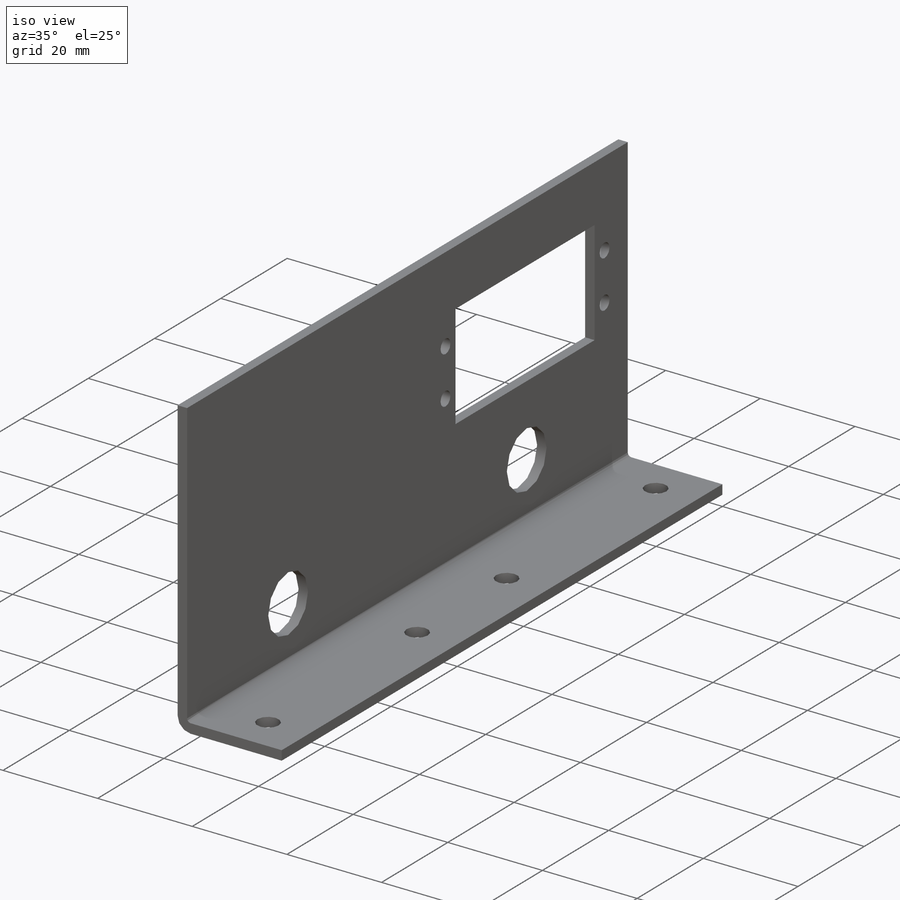
[diagram: iso view]
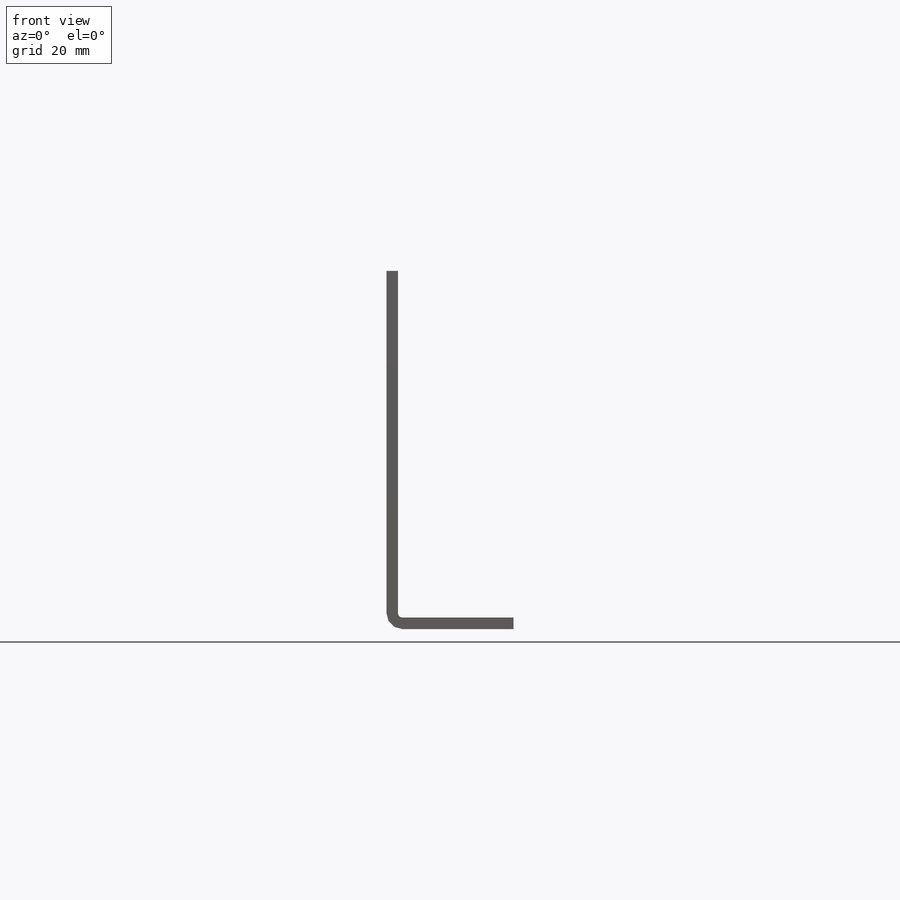
[diagram: front view]
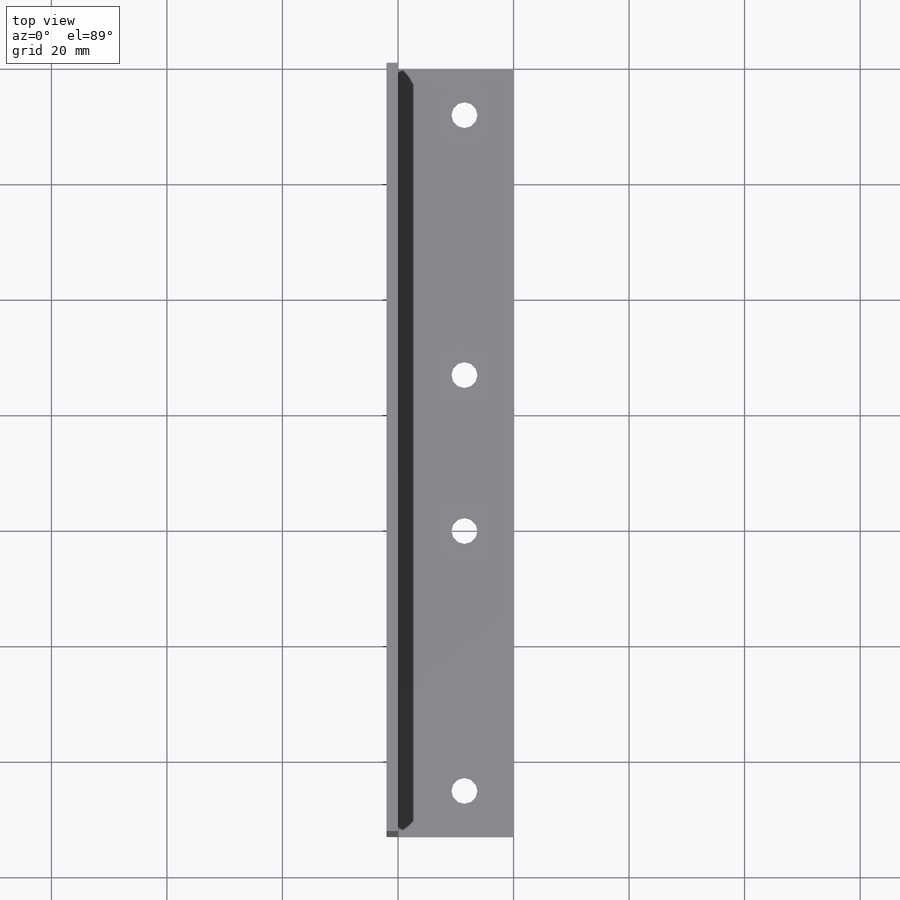
[diagram: top view]
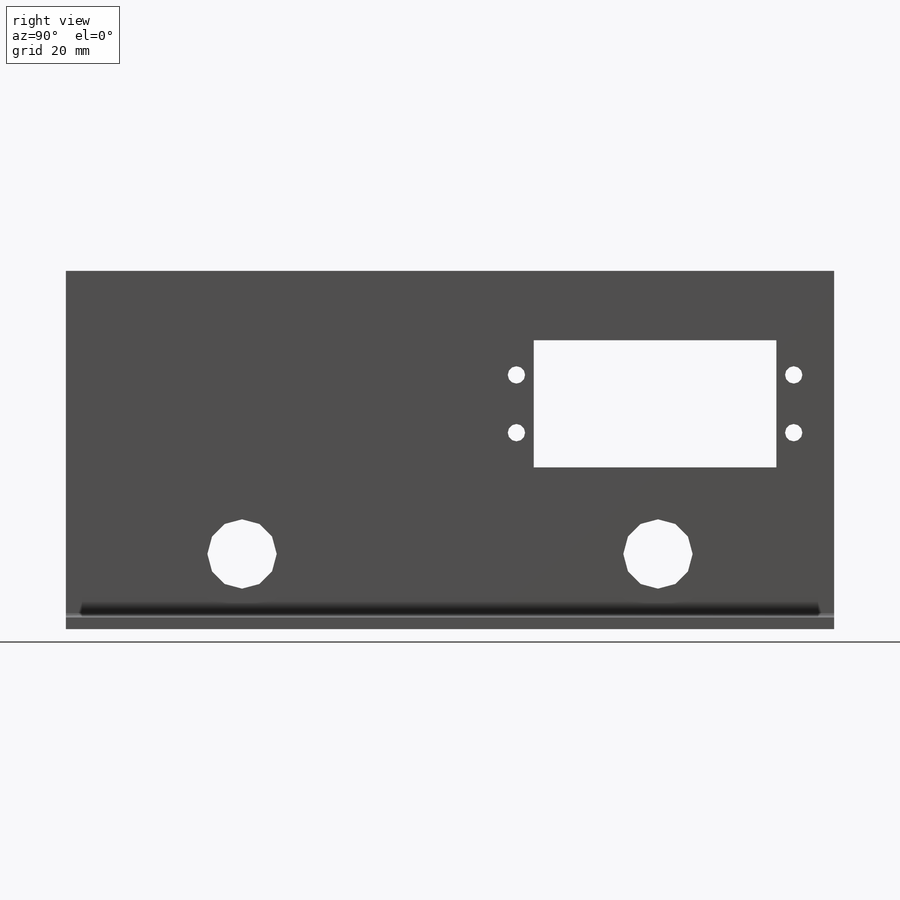
[diagram: right view]
SOLIDWORKS PART (.sldprt)
format: sldprt  version: not decoded by parser v0  size: 323,072 bytes
history: native  units: mm
features: sheet_metal_op x19, plane x4, hole x4, cut_extrude x2, material x1, sketch x1 + 8 further entries (+10 scaffold rows collapsed)
feature tree (49):
  scaffold x10  (default folders/planes/origin — collapsed)
  material  "材質 <未指定>"
  plane  "前基準面"
  plane  "上基準面"
  plane  "右基準面"
  sketch  "草圖1"  dims[c1.D1=60.0mm c1.D2=20.0mm c2.D1=0.7366mm c2.D2=0.5 c2.D3=0.0mm c2.D6=500.0mm]
  sheet_metal_op  "基材-凸緣1"
  sheet_metal_op  "草圖2"
  cut_extrude  "除料-伸長1"  [1 undecoded]
  hole  "M4x0.7 螺紋孔3"  [1 undecoded]
  sheet_metal_op  "草圖4"
  sheet_metal_op  "草圖3"  4=25.4mm 螺孔鑽直徑=2.5mm 螺孔鑽深度=7.5mm 螺紋主直徑=3mm 螺紋深度=6mm
  plane  "平面1"
  sheet_metal_op  "草圖6"
  cut_extrude  "除料-伸長2"  [1 undecoded]
  sheet_metal_op  "彎折-線1"
  sheet_metal_op  "邊界方塊1"
  sheet_metal_op  "鈑金1"
  "平板-型式1"
  sheet_metal_op  "彎折-線2"
  sheet_metal_op  "邊界方塊2"
  "草圖變形1"
  hole  "鈑金3"  Diameter=0.7366mm
  sheet_metal_op  "平板-型式1"
  sheet_metal_op  "彎折-線2"
  sheet_metal_op  "邊界方塊2"
  "草圖變形1"
  "平板-<基材彎折1>1"
  hole  "鈑金4"  Diameter=0.7366mm
  sheet_metal_op  "平板-型式1"
  sheet_metal_op  "彎折-線2"
  sheet_metal_op  "邊界方塊2"
  "草圖變形1"
  "平板-<基材彎折1>1"
  hole  "鈑金5"  Diameter=0.7366mm
  sheet_metal_op  "平板-型式1"
  sheet_metal_op  "彎折-線2"
  sheet_metal_op  "邊界方塊2"
  "平板-<基材彎折1>1"
  "草圖變形1"
decode coverage: 5 of 26 modeling features carry decoded parameters; 8 rows unclassified (native names shown)
note: 3 parameter values undecoded
summary: no parameter record found for 3 features
note: suppression state not decoded; provenance and decode notes live in map.json
